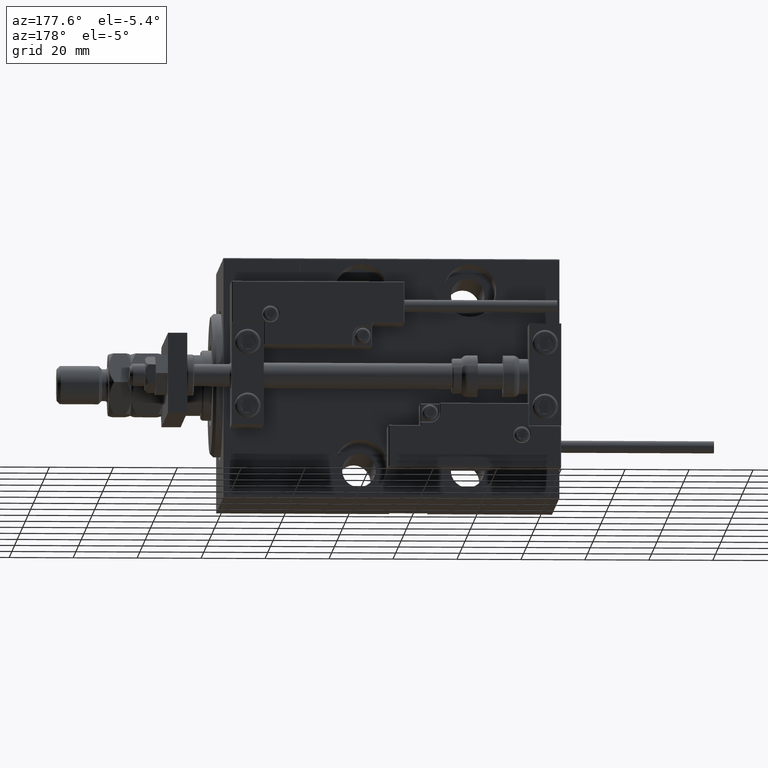
[diagram: clean part render]
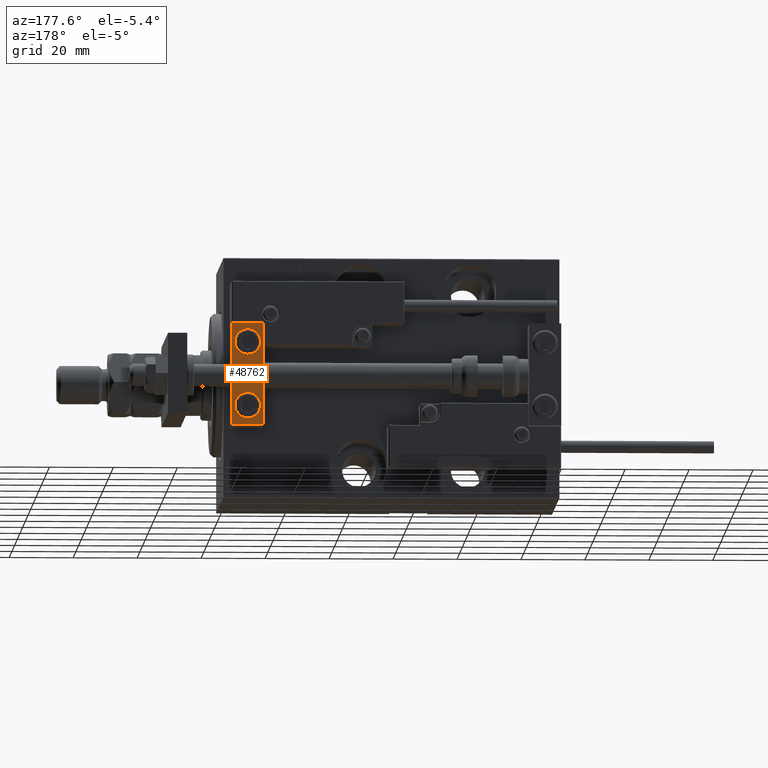
[diagram: same view with one face highlighted and labeled with its STEP entity id]
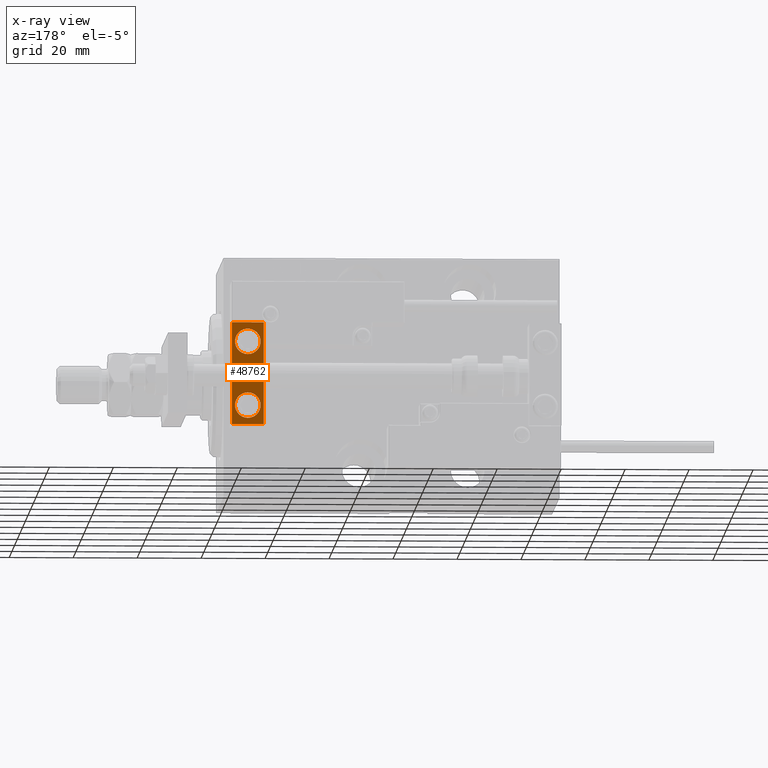
[diagram: x-ray of the same camera — body ghosted, the highlighted face saturated]
A machine part, auxiliary view. The second image highlights one B-rep face of the part: STEP entity #48762.
The next image is the same camera in x-ray: the body ghosted, the highlighted face saturated — about 0% of this face is hidden behind the body in this view.
In plain terms, the highlighted planar face has unit normal (0, 1, 0).
Its self-contained STEP definition (entity closure, byte-faithful):
#485 = CARTESIAN_POINT ( 'NONE',  ( 0.000000000000000000, 7.000000000000000000, 15.99999999999999289 ) ) ;
#514 = CARTESIAN_POINT ( 'NONE',  ( 5.000000000000000888, 7.000000000000000888, 14.00000000000000178 ) ) ;
#925 = DIRECTION ( 'NONE',  ( 0.000000000000000000, 0.000000000000000000, -1.000000000000000000 ) ) ;
#1550 = VECTOR ( 'NONE', #7806, 1000.000000000000000 ) ;
#1622 = AXIS2_PLACEMENT_3D ( 'NONE', #50117, #38347, #14289 ) ;
#3026 = FACE_BOUND ( 'NONE', #5116, .T. ) ;
#3773 = DIRECTION ( 'NONE',  ( -0.000000000000000000, 1.000000000000000000, 0.000000000000000000 ) ) ;
#4437 = EDGE_CURVE ( 'NONE', #10167, #26848, #48025, .T. ) ;
#5116 = EDGE_LOOP ( 'NONE', ( #43597, #37219 ) ) ;
#5591 = ORIENTED_EDGE ( 'NONE', *, *, #4437, .F. ) ;
#6940 = FACE_OUTER_BOUND ( 'NONE', #27304, .T. ) ;
#7554 = CARTESIAN_POINT ( 'NONE',  ( 5.000000000000001776, 7.000000000000000888, 6.000000000000000888 ) ) ;
#7806 = DIRECTION ( 'NONE',  ( 0.000000000000000000, 0.000000000000000000, -1.000000000000000000 ) ) ;
#8044 = VERTEX_POINT ( 'NONE', #28651 ) ;
#9108 = CARTESIAN_POINT ( 'NONE',  ( 5.000000000000000888, 7.000000000000000888, 10.00000000000000178 ) ) ;
#10167 = VERTEX_POINT ( 'NONE', #41772 ) ;
#10378 = DIRECTION ( 'NONE',  ( 0.000000000000000000, 1.000000000000000000, -6.065466699219605527E-17 ) ) ;
#11090 = DIRECTION ( 'NONE',  ( 0.000000000000000000, 0.000000000000000000, 1.000000000000000000 ) ) ;
#12725 = DIRECTION ( 'NONE',  ( -1.000000000000000000, -0.000000000000000000, -0.000000000000000000 ) ) ;
#13180 = CARTESIAN_POINT ( 'NONE',  ( 10.00000000000000000, 7.000000000000000000, 15.99999999999999289 ) ) ;
#14289 = DIRECTION ( 'NONE',  ( 0.000000000000000000, 0.000000000000000000, 1.000000000000000000 ) ) ;
#14344 = VERTEX_POINT ( 'NONE', #7554 ) ;
#16028 = CARTESIAN_POINT ( 'NONE',  ( 5.000000000000000888, 7.000000000000000888, 10.00000000000000178 ) ) ;
#16541 = ORIENTED_EDGE ( 'NONE', *, *, #24340, .T. ) ;
#16861 = VERTEX_POINT ( 'NONE', #24249 ) ;
#17077 = VECTOR ( 'NONE', #925, 1000.000000000000000 ) ;
#18742 = CARTESIAN_POINT ( 'NONE',  ( 5.000000000000000888, 6.999999999999999112, -10.00000000000000178 ) ) ;
#18963 = PLANE ( 'NONE',  #48240 ) ;
#19272 = EDGE_CURVE ( 'NONE', #26848, #43487, #32084, .T. ) ;
#19461 = CARTESIAN_POINT ( 'NONE',  ( 10.00000000000000000, 7.000000000000000000, 15.99999999999999289 ) ) ;
#19472 = EDGE_CURVE ( 'NONE', #16861, #8044, #34120, .T. ) ;
#20043 = DIRECTION ( 'NONE',  ( -1.000000000000000000, -0.000000000000000000, -0.000000000000000000 ) ) ;
#21297 = EDGE_LOOP ( 'NONE', ( #39111, #49388 ) ) ;
#21302 = EDGE_CURVE ( 'NONE', #8044, #16861, #24175, .T. ) ;
#21749 = EDGE_CURVE ( 'NONE', #39517, #14344, #47558, .T. ) ;
#23394 = DIRECTION ( 'NONE',  ( 0.000000000000000000, -0.000000000000000000, 1.000000000000000000 ) ) ;
#24175 = CIRCLE ( 'NONE', #1622, 4.000000000000000888 ) ;
#24249 = CARTESIAN_POINT ( 'NONE',  ( 5.000000000000001776, 6.999999999999999112, -14.00000000000000178 ) ) ;
#24340 = EDGE_CURVE ( 'NONE', #31553, #43487, #39909, .T. ) ;
#25758 = AXIS2_PLACEMENT_3D ( 'NONE', #18742, #10378, #30473 ) ;
#26848 = VERTEX_POINT ( 'NONE', #28595 ) ;
#27304 = EDGE_LOOP ( 'NONE', ( #42538, #5591, #51187, #16541 ) ) ;
#28595 = CARTESIAN_POINT ( 'NONE',  ( 0.000000000000000000, 7.000000000000000000, 15.99999999999999289 ) ) ;
#28651 = CARTESIAN_POINT ( 'NONE',  ( 5.000000000000000888, 6.999999999999999112, -6.000000000000000888 ) ) ;
#30473 = DIRECTION ( 'NONE',  ( 0.000000000000000000, 0.000000000000000000, 1.000000000000000000 ) ) ;
#31553 = VERTEX_POINT ( 'NONE', #46671 ) ;
#32084 = LINE ( 'NONE', #485, #1550 ) ;
#34120 = CIRCLE ( 'NONE', #25758, 4.000000000000000888 ) ;
#34410 = EDGE_CURVE ( 'NONE', #10167, #31553, #49006, .T. ) ;
#34995 = CIRCLE ( 'NONE', #49993, 4.000000000000000000 ) ;
#35454 = CARTESIAN_POINT ( 'NONE',  ( 10.00000000000000000, 7.000000000000000000, -16.00000000000000711 ) ) ;
#35923 = FACE_BOUND ( 'NONE', #21297, .T. ) ;
#36145 = VECTOR ( 'NONE', #20043, 1000.000000000000000 ) ;
#37219 = ORIENTED_EDGE ( 'NONE', *, *, #19472, .F. ) ;
#38347 = DIRECTION ( 'NONE',  ( 0.000000000000000000, 1.000000000000000000, -6.065466699219605527E-17 ) ) ;
#38385 = AXIS2_PLACEMENT_3D ( 'NONE', #16028, #50843, #11090 ) ;
#39111 = ORIENTED_EDGE ( 'NONE', *, *, #21749, .T. ) ;
#39517 = VERTEX_POINT ( 'NONE', #514 ) ;
#39909 = LINE ( 'NONE', #35454, #36145 ) ;
#39928 = CARTESIAN_POINT ( 'NONE',  ( 10.00000000000000000, 7.000000000000000000, 15.99999999999999289 ) ) ;
#39941 = VECTOR ( 'NONE', #12725, 1000.000000000000000 ) ;
#41772 = CARTESIAN_POINT ( 'NONE',  ( 10.00000000000000000, 7.000000000000000000, 15.99999999999999289 ) ) ;
#42538 = ORIENTED_EDGE ( 'NONE', *, *, #19272, .F. ) ;
#43487 = VERTEX_POINT ( 'NONE', #46265 ) ;
#43597 = ORIENTED_EDGE ( 'NONE', *, *, #21302, .F. ) ;
#44420 = DIRECTION ( 'NONE',  ( 0.000000000000000000, 0.000000000000000000, 1.000000000000000000 ) ) ;
#44669 = DIRECTION ( 'NONE',  ( 1.848892746611746419E-32, -1.000000000000000000, 6.616381192988677562E-17 ) ) ;
#46265 = CARTESIAN_POINT ( 'NONE',  ( 0.000000000000000000, 7.000000000000000000, -16.00000000000000711 ) ) ;
#46671 = CARTESIAN_POINT ( 'NONE',  ( 10.00000000000000000, 7.000000000000000000, -16.00000000000000711 ) ) ;
#47353 = EDGE_CURVE ( 'NONE', #14344, #39517, #34995, .T. ) ;
#47558 = CIRCLE ( 'NONE', #38385, 4.000000000000000000 ) ;
#48025 = LINE ( 'NONE', #39928, #39941 ) ;
#48240 = AXIS2_PLACEMENT_3D ( 'NONE', #19461, #3773, #23394 ) ;
#48762 = ADVANCED_FACE ( 'NONE', ( #6940, #3026, #35923 ), #18963, .T. ) ;
#49006 = LINE ( 'NONE', #13180, #17077 ) ;
#49388 = ORIENTED_EDGE ( 'NONE', *, *, #47353, .T. ) ;
#49993 = AXIS2_PLACEMENT_3D ( 'NONE', #9108, #44669, #44420 ) ;
#50117 = CARTESIAN_POINT ( 'NONE',  ( 5.000000000000000888, 6.999999999999999112, -10.00000000000000178 ) ) ;
#50843 = DIRECTION ( 'NONE',  ( 1.848892746611746419E-32, -1.000000000000000000, 6.616381192988677562E-17 ) ) ;
#51187 = ORIENTED_EDGE ( 'NONE', *, *, #34410, .T. ) ;